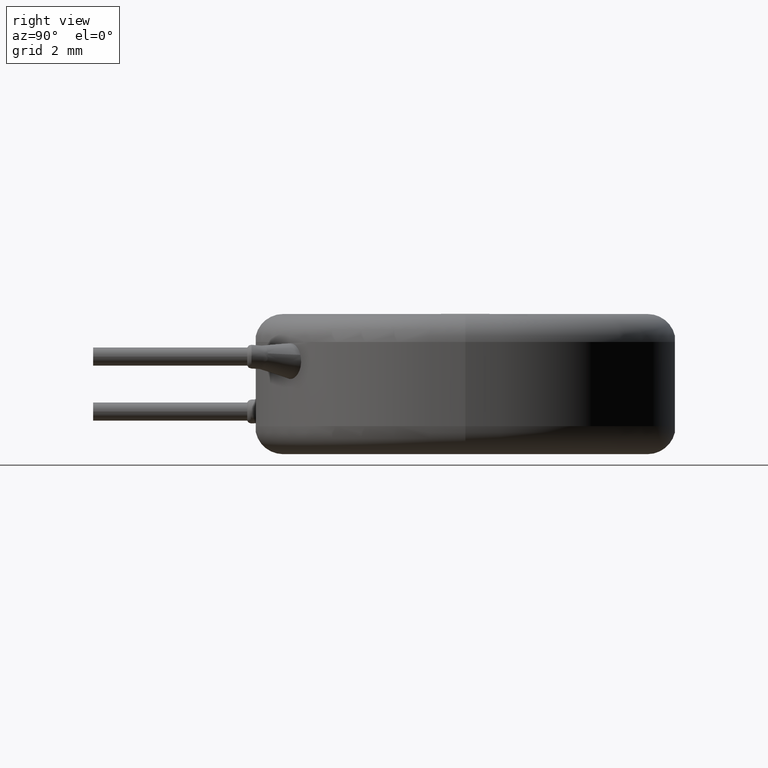
[diagram: clean part render]
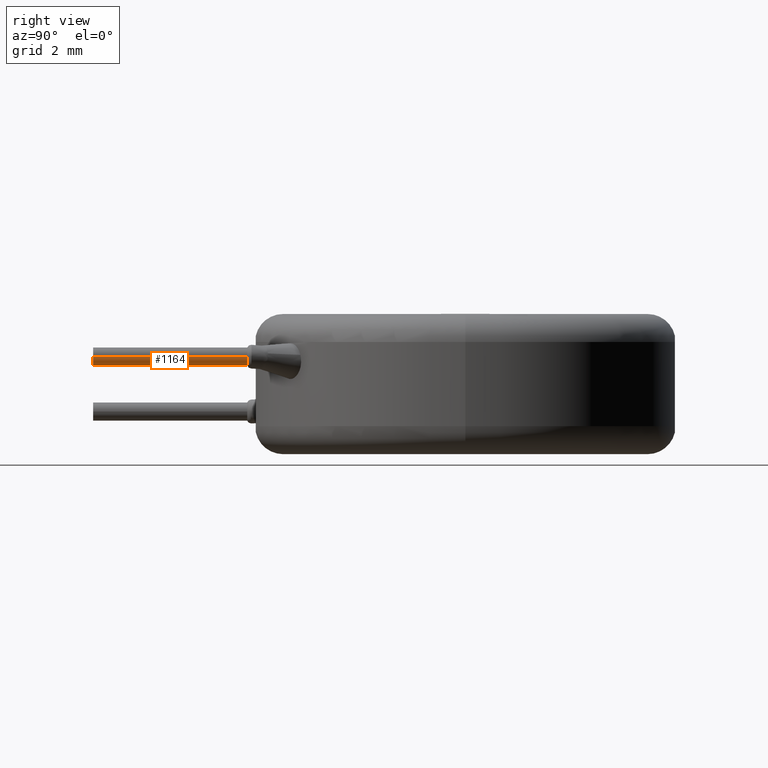
[diagram: same view with one face highlighted and labeled with its STEP entity id]
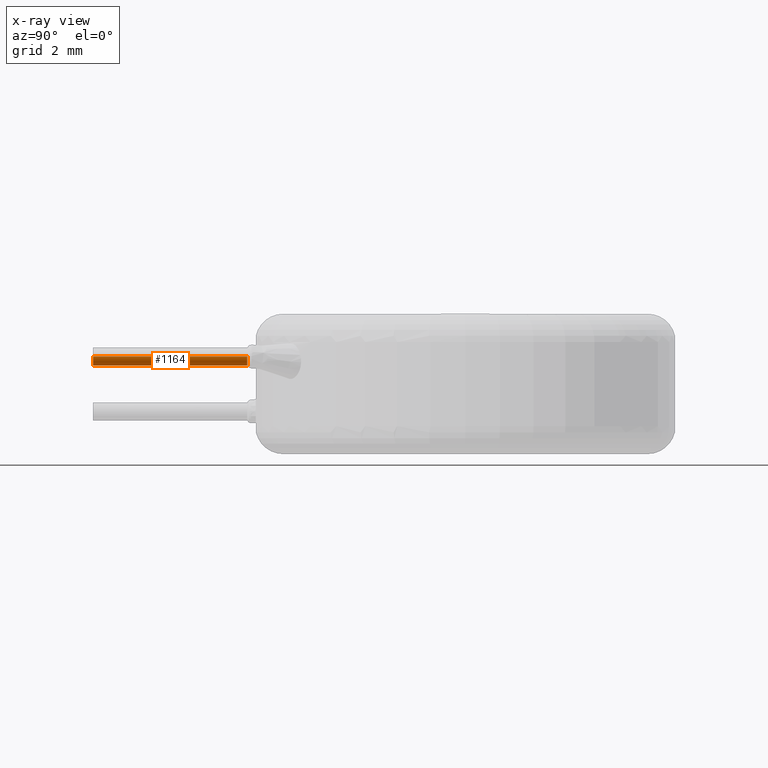
[diagram: x-ray of the same camera — body ghosted, the highlighted face saturated]
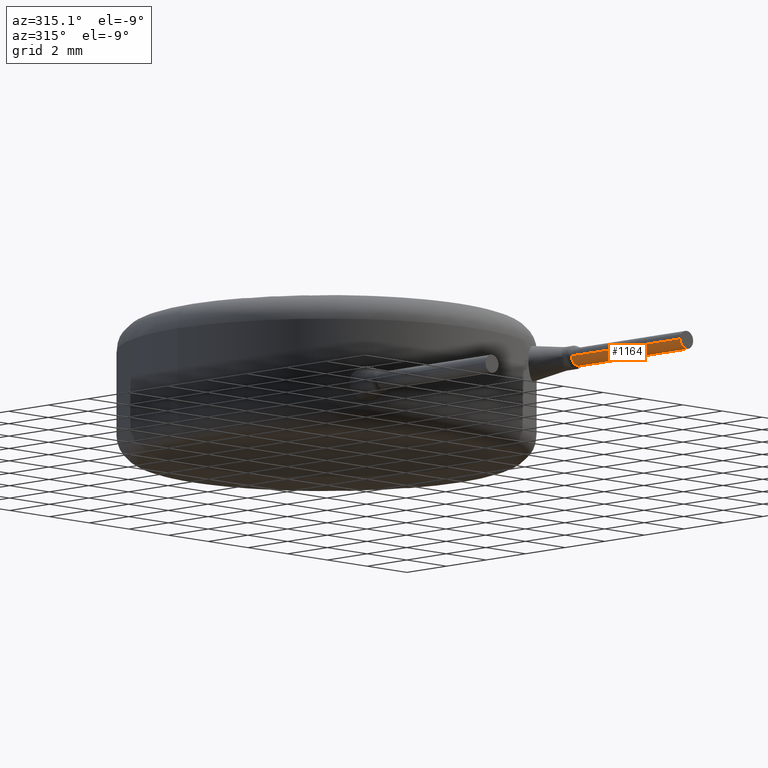
[diagram: same view with one face highlighted and labeled with its STEP entity id]
A machine part, right view. The second image highlights one B-rep face of the part: STEP entity #1164.
The next image is the same camera in x-ray: the body ghosted, the highlighted face saturated — about 0% of this face is hidden behind the body in this view.
A second angle (auxiliary view) of the same face is appended — the face is thin or edge-on in the first view.
In plain terms, the highlighted cylindrical surface (edge-blend (fillet) strip) has radius 0.325 mm, axis along (0, -1, -0).
Its self-contained STEP definition (entity closure, byte-faithful):
#75 = DIRECTION ( 'NONE',  ( -0.0000000000000000000, -1.000000000000000000, -0.0000000000000000000 ) ) ;
#107 = DIRECTION ( 'NONE',  ( 1.577021341797097600E-016, -1.000000000000000000, -7.885106708985487800E-017 ) ) ;
#176 = ORIENTED_EDGE ( 'NONE', *, *, #2854, .T. ) ;
#355 = CARTESIAN_POINT ( 'NONE',  ( 4.990934860273367400, -7.777496219619416200, 3.167730139158223800 ) ) ;
#433 = CYLINDRICAL_SURFACE ( 'NONE', #2263, 0.3249999999999997900 ) ;
#566 = VERTEX_POINT ( 'NONE', #2752 ) ;
#779 = ORIENTED_EDGE ( 'NONE', *, *, #3754, .F. ) ;
#895 = VECTOR ( 'NONE', #1580, 1000.000000000000000 ) ;
#1074 = DIRECTION ( 'NONE',  ( 0.0000000000000000000, 0.0000000000000000000, 1.000000000000000000 ) ) ;
#1164 = ADVANCED_FACE ( 'NONE', ( #1251 ), #433, .T. ) ;
#1251 = FACE_OUTER_BOUND ( 'NONE', #1402, .T. ) ;
#1294 = EDGE_CURVE ( 'NONE', #1460, #2925, #3609, .T. ) ;
#1332 = AXIS2_PLACEMENT_3D ( 'NONE', #1497, #1849, #2164 ) ;
#1389 = DIRECTION ( 'NONE',  ( 0.0000000000000000000, 0.0000000000000000000, 1.000000000000000000 ) ) ;
#1402 = EDGE_LOOP ( 'NONE', ( #1453, #176, #2161, #2780, #779 ) ) ;
#1453 = ORIENTED_EDGE ( 'NONE', *, *, #3287, .F. ) ;
#1460 = VERTEX_POINT ( 'NONE', #355 ) ;
#1470 = LINE ( 'NONE', #3552, #895 ) ;
#1497 = CARTESIAN_POINT ( 'NONE',  ( 4.902903378454607400, -13.27749621961941700, 3.480580675690901200 ) ) ;
#1580 = DIRECTION ( 'NONE',  ( 1.577021341797097600E-016, -1.000000000000000000, -7.885106708985487800E-017 ) ) ;
#1738 = CARTESIAN_POINT ( 'NONE',  ( 4.902903378454606600, -7.777496219619417900, 3.480580675690901700 ) ) ;
#1756 = AXIS2_PLACEMENT_3D ( 'NONE', #3671, #3039, #1074 ) ;
#1849 = DIRECTION ( 'NONE',  ( -2.337539883878747600E-016, -1.000000000000000000, -1.387778780781445700E-017 ) ) ;
#1881 = CARTESIAN_POINT ( 'NONE',  ( 4.577903378454606400, -7.777496219619417900, 3.480580675690901700 ) ) ;
#2161 = ORIENTED_EDGE ( 'NONE', *, *, #1294, .T. ) ;
#2164 = DIRECTION ( 'NONE',  ( 0.9996179165739549300, 0.0000000000000000000, 0.02764092734236072600 ) ) ;
#2230 = VECTOR ( 'NONE', #3862, 1000.000000000000000 ) ;
#2263 = AXIS2_PLACEMENT_3D ( 'NONE', #1738, #107, #2721 ) ;
#2397 = CARTESIAN_POINT ( 'NONE',  ( 5.227903378454605800, -7.777496219619416200, 3.480580675690901200 ) ) ;
#2518 = AXIS2_PLACEMENT_3D ( 'NONE', #3012, #75, #1389 ) ;
#2615 = CARTESIAN_POINT ( 'NONE',  ( 4.577903378454607300, -13.27749621961941700, 3.480580675690901200 ) ) ;
#2721 = DIRECTION ( 'NONE',  ( 1.000000000000000000, 0.0000000000000000000, 0.0000000000000000000 ) ) ;
#2752 = CARTESIAN_POINT ( 'NONE',  ( 5.227903378454606700, -13.27749621961941700, 3.480580675690901200 ) ) ;
#2780 = ORIENTED_EDGE ( 'NONE', *, *, #3205, .T. ) ;
#2854 = EDGE_CURVE ( 'NONE', #3169, #1460, #3959, .T. ) ;
#2925 = VERTEX_POINT ( 'NONE', #2397 ) ;
#3012 = CARTESIAN_POINT ( 'NONE',  ( 4.902903378454606600, -7.777496219619416200, 3.480580675690902100 ) ) ;
#3039 = DIRECTION ( 'NONE',  ( -0.0000000000000000000, -1.000000000000000000, -0.0000000000000000000 ) ) ;
#3169 = VERTEX_POINT ( 'NONE', #3403 ) ;
#3191 = LINE ( 'NONE', #1881, #2230 ) ;
#3205 = EDGE_CURVE ( 'NONE', #2925, #566, #1470, .T. ) ;
#3287 = EDGE_CURVE ( 'NONE', #3169, #3981, #3191, .T. ) ;
#3403 = CARTESIAN_POINT ( 'NONE',  ( 4.577903378454606400, -7.777496219619416200, 3.480580675690901200 ) ) ;
#3552 = CARTESIAN_POINT ( 'NONE',  ( 5.227903378454605800, -7.777496219619417900, 3.480580675690901700 ) ) ;
#3609 = CIRCLE ( 'NONE', #1756, 0.3249999999999997900 ) ;
#3671 = CARTESIAN_POINT ( 'NONE',  ( 4.902903378454606600, -7.777496219619416200, 3.480580675690902100 ) ) ;
#3754 = EDGE_CURVE ( 'NONE', #3981, #566, #3941, .T. ) ;
#3862 = DIRECTION ( 'NONE',  ( 1.577021341797097600E-016, -1.000000000000000000, -7.885106708985487800E-017 ) ) ;
#3941 = CIRCLE ( 'NONE', #1332, 0.3250000000000001200 ) ;
#3959 = CIRCLE ( 'NONE', #2518, 0.3249999999999997900 ) ;
#3981 = VERTEX_POINT ( 'NONE', #2615 ) ;